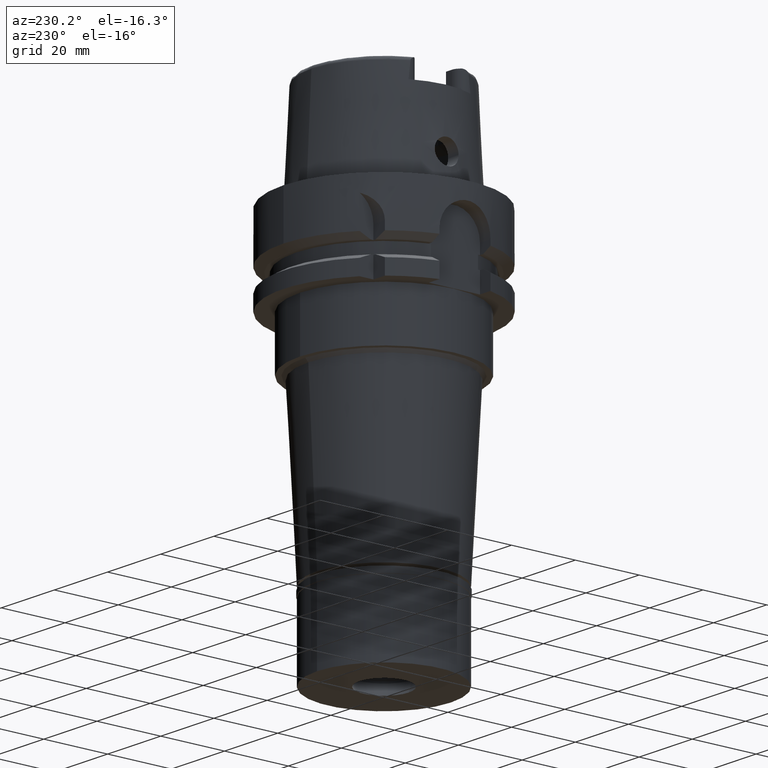
[diagram: clean part render]
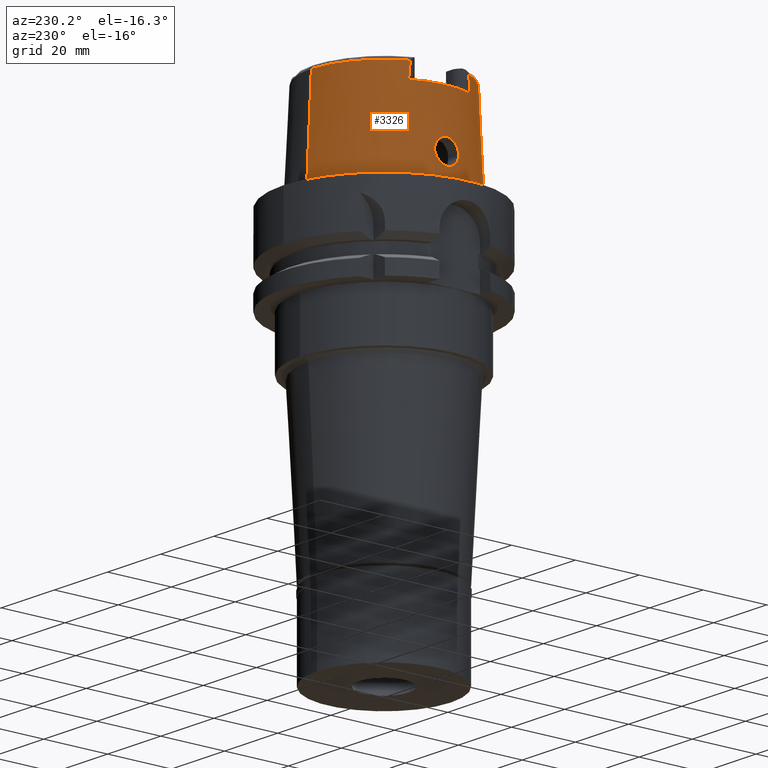
[diagram: same view with one face highlighted and labeled with its STEP entity id]
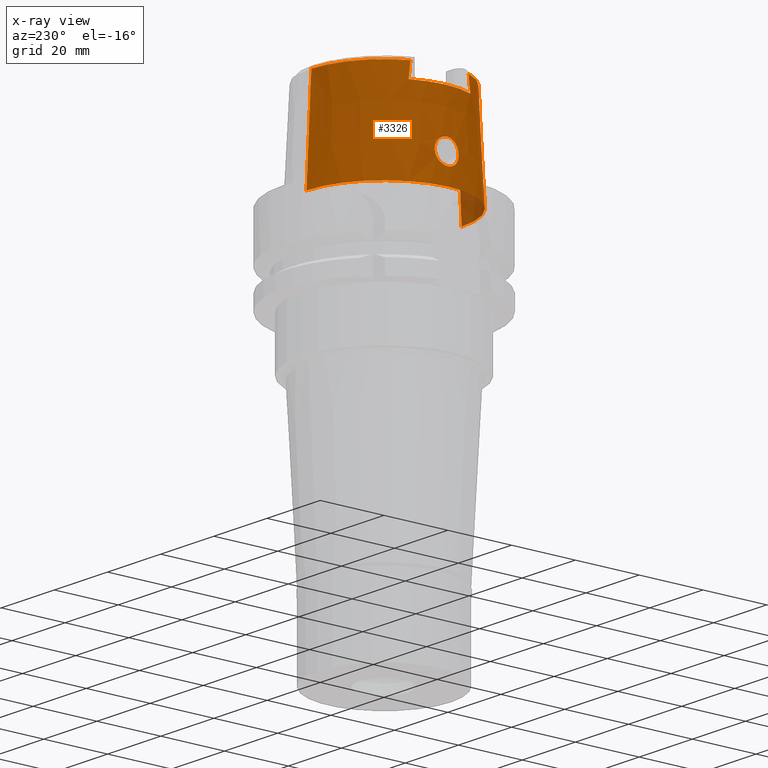
[diagram: x-ray of the same camera — body ghosted, the highlighted face saturated]
A machine part, auxiliary view. The second image highlights one B-rep face of the part: STEP entity #3326.
The next image is the same camera in x-ray: the body ghosted, the highlighted face saturated — about 3% of this face is hidden behind the body in this view.
In plain terms, the highlighted conical surface has half-angle 2.862 deg.
Its self-contained STEP definition (entity closure, byte-faithful):
#3 = CARTESIAN_POINT ( 'NONE',  ( -23.90977037416724471, -2.249098662439327434, 5.996807719199774844 ) ) ;
#35 = VECTOR ( 'NONE', #758, 1000.000000000000000 ) ;
#67 = CARTESIAN_POINT ( 'NONE',  ( -20.87000000000000099, 9.332993010319471594, 29.07609872775757864 ) ) ;
#68 = ORIENTED_EDGE ( 'NONE', *, *, #2500, .T. ) ;
#76 = CARTESIAN_POINT ( 'NONE',  ( -23.63437457385091278, 3.633527113108562023, 8.063950855209954582 ) ) ;
#101 = CARTESIAN_POINT ( 'NONE',  ( -23.54569396668904702, 3.703836825016511902, 9.599128881401501445 ) ) ;
#116 = CARTESIAN_POINT ( 'NONE',  ( -23.56144596810483449, -3.018213368116317241, 11.22950411455741104 ) ) ;
#131 = CARTESIAN_POINT ( 'NONE',  ( -23.67204778675521837, 3.510868496055372212, 7.681596404074562123 ) ) ;
#137 = CIRCLE ( 'NONE', #1560, 22.77198729362000407 ) ;
#144 = CARTESIAN_POINT ( 'NONE',  ( -23.62804747543161810, -1.887971471033302429, 12.24241216139141386 ) ) ;
#156 = CARTESIAN_POINT ( 'NONE',  ( -23.95873813391686014, 1.834456126075017401, 5.727307940465812486 ) ) ;
#168 = CARTESIAN_POINT ( 'NONE',  ( -23.54158944786044927, -3.389292595187946233, 10.61707941567341074 ) ) ;
#171 = FACE_BOUND ( 'NONE', #3247, .T. ) ;
#183 = CARTESIAN_POINT ( 'NONE',  ( -23.66082307025294185, 3.550090196351439520, 7.788899138935733824 ) ) ;
#196 = CARTESIAN_POINT ( 'NONE',  ( -23.61419268207033184, -2.139982146950603070, 12.08001965717773984 ) ) ;
#203 = EDGE_CURVE ( 'NONE', #774, #2773, #5257, .T. ) ;
#225 = DIRECTION ( 'NONE',  ( 0.0000000000000000000, -1.000000000000000000, 0.0000000000000000000 ) ) ;
#350 = CARTESIAN_POINT ( 'NONE',  ( -23.65917826466652585, 1.131066160346437588, 12.57592810551607521 ) ) ;
#358 = CARTESIAN_POINT ( 'NONE',  ( -23.85940849599262137, -2.596745478289239184, 6.294460855083120698 ) ) ;
#380 = CARTESIAN_POINT ( 'NONE',  ( -23.60596712640806061, 2.288652689664923301, 11.97316824281066339 ) ) ;
#381 = CIRCLE ( 'NONE', #833, 22.77198729362000051 ) ;
#391 = CARTESIAN_POINT ( 'NONE',  ( -23.88986219125986565, -2.392977197173405290, 6.112105039822392172 ) ) ;
#412 = VERTEX_POINT ( 'NONE', #2491 ) ;
#436 = CARTESIAN_POINT ( 'NONE',  ( -23.67506895845820480, 0.4634979685447069842, 12.72935646854004510 ) ) ;
#439 = ORIENTED_EDGE ( 'NONE', *, *, #203, .T. ) ;
#447 = CARTESIAN_POINT ( 'NONE',  ( -24.04784403100638457, -0.4712449221277967837, 5.271782624352803204 ) ) ;
#465 = CARTESIAN_POINT ( 'NONE',  ( -23.61880391537575719, 2.057588275288036783, 12.13510928703446368 ) ) ;
#478 = ORIENTED_EDGE ( 'NONE', *, *, #929, .F. ) ;
#479 = CARTESIAN_POINT ( 'NONE',  ( -23.93272843567258334, -2.063917717377175443, 5.869059823040394974 ) ) ;
#491 = CARTESIAN_POINT ( 'NONE',  ( -24.03357619164687620, 0.9592489072260214078, 5.338999859570744633 ) ) ;
#503 = CARTESIAN_POINT ( 'NONE',  ( -23.69194047245535018, -3.437410593531048164, 7.500766696733480288 ) ) ;
#528 = CARTESIAN_POINT ( 'NONE',  ( -23.61122740987530833, -2.191637265236651366, 12.04351675565335000 ) ) ;
#544 = B_SPLINE_CURVE_WITH_KNOTS ( 'NONE', 3,
 ( #1317, #67, #4729, #2986 ),
 .UNSPECIFIED., .F., .F.,
 ( 4, 4 ),
 ( 0.0000000000000000000, 1.000000000000000000 ),
 .UNSPECIFIED. ) ;
#559 = CARTESIAN_POINT ( 'NONE',  ( -23.59634444344348481, -3.723336540904699898, 8.538273357625230986 ) ) ;
#564 = CARTESIAN_POINT ( 'NONE',  ( 0.0000000000000000000, 0.0000000000000000000, 15.42996356139999925 ) ) ;
#578 = CARTESIAN_POINT ( 'NONE',  ( -23.76356790336996738, 3.127473406056431315, 6.930828792496343205 ) ) ;
#585 = CARTESIAN_POINT ( 'NONE',  ( -20.87000000000000099, -9.333063949578622953, 29.07564004622490472 ) ) ;
#590 = CARTESIAN_POINT ( 'NONE',  ( -23.64567422987614265, -1.498965751452768780, 12.43752788590499847 ) ) ;
#602 = CARTESIAN_POINT ( 'NONE',  ( -23.99367728941791711, 1.455759103901361096, 5.544090531634782160 ) ) ;
#616 = CARTESIAN_POINT ( 'NONE',  ( -23.58310336962522413, -2.663375539943642067, 11.63988439339397019 ) ) ;
#647 = CIRCLE ( 'NONE', #5409, 23.01499170873999134 ) ;
#678 = CARTESIAN_POINT ( 'NONE',  ( 0.0000000000000000000, -22.77198729362000051, 30.85992712280000205 ) ) ;
#734 = ORIENTED_EDGE ( 'NONE', *, *, #2374, .T. ) ;
#739 = CARTESIAN_POINT ( 'NONE',  ( -20.86979783672000011, -9.115619593967000611, 30.82499209982999844 ) ) ;
#746 = VERTEX_POINT ( 'NONE', #1978 ) ;
#758 = DIRECTION ( 'NONE',  ( -8.032179027593385064E-05, 0.04993928193351242217, -0.9987522523971473776 ) ) ;
#774 = VERTEX_POINT ( 'NONE', #4556 ) ;
#801 = CARTESIAN_POINT ( 'NONE',  ( -23.58491409469606737, 2.635052964712600421, 11.66818904062335172 ) ) ;
#832 = CARTESIAN_POINT ( 'NONE',  ( -23.66467888944056597, 0.9475756481600703385, 12.63054958520283932 ) ) ;
#833 = AXIS2_PLACEMENT_3D ( 'NONE', #4476, #1094, #1587 ) ;
#870 = CARTESIAN_POINT ( 'NONE',  ( -23.78134344612870166, -3.041179219897967023, 6.805112682271994728 ) ) ;
#872 = B_SPLINE_CURVE_WITH_KNOTS ( 'NONE', 3,
 ( #4359, #5168, #585, #4803 ),
 .UNSPECIFIED., .F., .F.,
 ( 4, 4 ),
 ( 0.0000000000000000000, 1.000000000000000000 ),
 .UNSPECIFIED. ) ;
#898 = CARTESIAN_POINT ( 'NONE',  ( -23.98791706815517344, -1.528498916216137538, 5.573749374551493219 ) ) ;
#929 = EDGE_CURVE ( 'NONE', #1610, #2773, #1855, .T. ) ;
#944 = CARTESIAN_POINT ( 'NONE',  ( -24.05252611746999847, 7.219293415727999012E-14, 5.250000000000000000 ) ) ;
#956 = CARTESIAN_POINT ( 'NONE',  ( -23.57934808772374780, -3.745536687796405140, 8.801868061857486936 ) ) ;
#969 = CARTESIAN_POINT ( 'NONE',  ( -23.55526259915409781, 3.738464471627190200, 9.299978913770392097 ) ) ;
#971 = CARTESIAN_POINT ( 'NONE',  ( -0.002481821280835999795, -22.77198688789000158, 30.85992712280000205 ) ) ;
#981 = CARTESIAN_POINT ( 'NONE',  ( -23.66769040187652706, -0.9503256639184251009, 12.66622697785814466 ) ) ;
#999 = CARTESIAN_POINT ( 'NONE',  ( -23.53972063624943090, 3.464158001256794961, 10.43602610361657490 ) ) ;
#1009 = CARTESIAN_POINT ( 'NONE',  ( -23.53882832073502129, -3.506283916819488589, 10.33048937356812580 ) ) ;
#1024 = CARTESIAN_POINT ( 'NONE',  ( -23.99468300645522945, 1.443410085954758060, 5.538914600029040791 ) ) ;
#1032 = DIRECTION ( 'NONE',  ( -0.9164655183265837390, 0.4001136759951928745, 0.0000000000000000000 ) ) ;
#1036 = CARTESIAN_POINT ( 'NONE',  ( -23.54087112373438018, -3.656725263444810636, 9.840145305279422772 ) ) ;
#1094 = DIRECTION ( 'NONE',  ( 0.0000000000000000000, 0.0000000000000000000, -1.000000000000000000 ) ) ;
#1198 = VERTEX_POINT ( 'NONE', #4151 ) ;
#1225 = CARTESIAN_POINT ( 'NONE',  ( -23.59755016234467817, 2.431230191671873708, 11.85576782820229091 ) ) ;
#1234 = CARTESIAN_POINT ( 'NONE',  ( -24.03379777161551800, -0.8295365991404870520, 5.340879453357177731 ) ) ;
#1259 = EDGE_CURVE ( 'NONE', #1198, #4998, #4981, .T. ) ;
#1278 = CARTESIAN_POINT ( 'NONE',  ( -23.54997999185222923, 3.214026229454481243, 10.93586780750620768 ) ) ;
#1288 = CARTESIAN_POINT ( 'NONE',  ( -23.95664189688664081, -1.852136307179821806, 5.738701566537014465 ) ) ;
#1314 = CARTESIAN_POINT ( 'NONE',  ( -24.00427867961442274, -1.320123428068236349, 5.489798429226837584 ) ) ;
#1317 = CARTESIAN_POINT ( 'NONE',  ( -20.87000040551000168, 9.149999089200999691, 30.54560915661999942 ) ) ;
#1340 = CARTESIAN_POINT ( 'NONE',  ( -23.77398056527707126, -3.077623836675240199, 6.856552763758154256 ) ) ;
#1344 = VERTEX_POINT ( 'NONE', #3079 ) ;
#1357 = CARTESIAN_POINT ( 'NONE',  ( -23.91123268141057423, 2.248799028178886328, 5.988941100288991848 ) ) ;
#1369 = CARTESIAN_POINT ( 'NONE',  ( -23.57450363916938230, -3.748430211928189149, 8.887825237944436907 ) ) ;
#1382 = CARTESIAN_POINT ( 'NONE',  ( -23.83743598511618345, 2.731006983952081857, 6.429831926619324456 ) ) ;
#1396 = CARTESIAN_POINT ( 'NONE',  ( -23.63959860660019530, -1.642256044550597371, 12.37229502711610962 ) ) ;
#1439 = CARTESIAN_POINT ( 'NONE',  ( -23.84640056449046241, 2.677479688281084069, 6.374387674265216575 ) ) ;
#1451 = CARTESIAN_POINT ( 'NONE',  ( -23.56998770108803143, -3.750010121852111133, 8.971643345807194692 ) ) ;
#1466 = CARTESIAN_POINT ( 'NONE',  ( -23.76041262107198548, 3.142590146860217537, 6.953856223795551017 ) ) ;
#1478 = CARTESIAN_POINT ( 'NONE',  ( -23.63580597689347229, -1.725333418006325115, 12.33009276472206928 ) ) ;
#1537 = VERTEX_POINT ( 'NONE', #3623 ) ;
#1560 = AXIS2_PLACEMENT_3D ( 'NONE', #4805, #4856, #1032 ) ;
#1587 = DIRECTION ( 'NONE',  ( 0.0000000000000000000, -1.000000000000000000, 0.0000000000000000000 ) ) ;
#1596 = CARTESIAN_POINT ( 'NONE',  ( -20.86974104062000279, -9.111384045007000054, 30.85992599777999956 ) ) ;
#1610 = VERTEX_POINT ( 'NONE', #678 ) ;
#1636 = CARTESIAN_POINT ( 'NONE',  ( -23.67751368057999883, 0.0000000000000000000, 12.75000000000000000 ) ) ;
#1658 = CARTESIAN_POINT ( 'NONE',  ( -23.54067330450968853, 3.430129260199126229, 10.51592010266325872 ) ) ;
#1684 = CARTESIAN_POINT ( 'NONE',  ( -23.58429707437746714, 2.644661622755614783, 11.65867690194888517 ) ) ;
#1695 = EDGE_CURVE ( 'NONE', #1344, #3750, #4764, .T. ) ;
#1711 = CONICAL_SURFACE ( 'NONE', #4964, 23.54351105844999736, 0.04996004983832824653 ) ;
#1719 = CARTESIAN_POINT ( 'NONE',  ( -23.64841273167512270, 1.431321641841721171, 12.46610142221273776 ) ) ;
#1757 = CARTESIAN_POINT ( 'NONE',  ( -23.99739408137548580, -1.409812632735452986, 5.525071007734585926 ) ) ;
#1775 = CARTESIAN_POINT ( 'NONE',  ( -23.82490491044294245, 2.804306900989513629, 6.509012968158042867 ) ) ;
#1802 = CARTESIAN_POINT ( 'NONE',  ( -23.55873676375497183, 3.744916830425509158, 9.210482356265831783 ) ) ;
#1814 = CARTESIAN_POINT ( 'NONE',  ( -23.53920756976014772, -3.486218784508323232, 10.38174248041745251 ) ) ;
#1818 = CARTESIAN_POINT ( 'NONE',  ( -20.86989332435999600, 9.124125753627000179, 30.75512689823000301 ) ) ;
#1826 = CARTESIAN_POINT ( 'NONE',  ( -23.81419323770733598, 2.864596055949950593, 6.579175657843782332 ) ) ;
#1843 = CARTESIAN_POINT ( 'NONE',  ( -20.86974104062000279, -9.111384045007000054, 30.85992599777999956 ) ) ;
#1854 = CARTESIAN_POINT ( 'NONE',  ( -23.98852074148177138, 1.517759262559271738, 5.570685814059329388 ) ) ;
#1855 = LINE ( 'NONE', #971, #5459 ) ;
#1867 = CARTESIAN_POINT ( 'NONE',  ( -23.58186774021432797, -2.683281682217989239, 11.61965271907572905 ) ) ;
#1885 = CARTESIAN_POINT ( 'NONE',  ( -23.68033249133873497, 3.480867105897472058, 7.604961491939133289 ) ) ;
#1896 = CARTESIAN_POINT ( 'NONE',  ( -23.57803920227373951, -2.745100258821645323, 11.55521655727574348 ) ) ;
#1932 = DIRECTION ( 'NONE',  ( 0.0000000000000000000, 1.000000000000000000, 0.0000000000000000000 ) ) ;
#1978 = CARTESIAN_POINT ( 'NONE',  ( -20.86999859286000003, -9.150003160549998071, 30.54568941691999839 ) ) ;
#2051 = CARTESIAN_POINT ( 'NONE',  ( -23.61157421355118302, 2.189743312326676961, 12.04674986831709660 ) ) ;
#2057 = ORIENTED_EDGE ( 'NONE', *, *, #3272, .F. ) ;
#2069 = CARTESIAN_POINT ( 'NONE',  ( -20.86999859286000003, -9.145656142293999480, 30.58059766507999910 ) ) ;
#2082 = CARTESIAN_POINT ( 'NONE',  ( -23.54698670297277729, 3.273566429523531163, 10.83288825706248737 ) ) ;
#2091 = CARTESIAN_POINT ( 'NONE',  ( -23.88287287509136902, -2.441782404214077218, 6.153149137644419397 ) ) ;
#2119 = CARTESIAN_POINT ( 'NONE',  ( -23.86621961881384379, -2.553053626325101799, 6.252916213073491214 ) ) ;
#2135 = CARTESIAN_POINT ( 'NONE',  ( -23.63993648970340899, 1.633983311195908561, 12.37753807014659380 ) ) ;
#2146 = CARTESIAN_POINT ( 'NONE',  ( -23.96228322086099283, -1.797894771192227514, 5.708526058005679360 ) ) ;
#2161 = CARTESIAN_POINT ( 'NONE',  ( -23.61799458439303834, 2.072497021282910801, 12.12527372385619806 ) ) ;
#2172 = CARTESIAN_POINT ( 'NONE',  ( -23.87185901803953669, -2.515824761732209147, 6.218954143894581676 ) ) ;
#2185 = CARTESIAN_POINT ( 'NONE',  ( -23.53850369563399880, 3.633734160848487882, 9.958084870872077943 ) ) ;
#2195 = VERTEX_POINT ( 'NONE', #1843 ) ;
#2224 = CARTESIAN_POINT ( 'NONE',  ( -23.64681593463163978, -1.471115943450023389, 12.44955342254505481 ) ) ;
#2226 = FACE_OUTER_BOUND ( 'NONE', #3346, .T. ) ;
#2240 = CARTESIAN_POINT ( 'NONE',  ( -23.94765431427196845, 1.937851768460953750, 5.787135434672112666 ) ) ;
#2251 = CARTESIAN_POINT ( 'NONE',  ( -23.53836553739646931, -3.544368480732007054, 10.22752641938382112 ) ) ;
#2267 = CARTESIAN_POINT ( 'NONE',  ( -23.84794387819798800, 2.668186244842986277, 6.364930592446333080 ) ) ;
#2281 = CARTESIAN_POINT ( 'NONE',  ( -23.55712623751192325, -3.092166483046957293, 11.12507249916881591 ) ) ;
#2293 = CARTESIAN_POINT ( 'NONE',  ( -23.79280889011993949, 2.981641885983248308, 6.722388114469310949 ) ) ;
#2299 = CARTESIAN_POINT ( 'NONE',  ( -20.87000000000000099, 9.702213322398998585, 26.00000000000000000 ) ) ;
#2306 = CARTESIAN_POINT ( 'NONE',  ( -23.53940178877574496, -3.477400120869876154, 10.40365610236502825 ) ) ;
#2342 = CARTESIAN_POINT ( 'NONE',  ( -20.87000040551000168, 9.149999089200999691, 30.54560915661999942 ) ) ;
#2374 = EDGE_CURVE ( 'NONE', #1610, #2195, #381, .T. ) ;
#2444 = CARTESIAN_POINT ( 'NONE',  ( 0.0000000000000000000, 0.0000000000000000000, -6.821210263297000155E-13 ) ) ;
#2449 = ORIENTED_EDGE ( 'NONE', *, *, #1695, .F. ) ;
#2478 = CARTESIAN_POINT ( 'NONE',  ( -23.57090358750208736, 2.851754690814571447, 11.45077027659394453 ) ) ;
#2490 = CARTESIAN_POINT ( 'NONE',  ( -23.93530267997261518, -2.042228591510286240, 5.854865975254936572 ) ) ;
#2491 = CARTESIAN_POINT ( 'NONE',  ( -20.86999931535000385, -9.702216590572000143, 26.00000000000000000 ) ) ;
#2500 = EDGE_CURVE ( 'NONE', #1537, #774, #3671, .T. ) ;
#2534 = CARTESIAN_POINT ( 'NONE',  ( -23.54198930544270496, 3.390534170926272850, 10.60379308699783785 ) ) ;
#2544 = CARTESIAN_POINT ( 'NONE',  ( -23.94775111549552093, -1.933588713242142543, 5.786788400814061539 ) ) ;
#2562 = CARTESIAN_POINT ( 'NONE',  ( -23.65232158309055066, 1.330154988880421607, 12.50643296395633364 ) ) ;
#2569 = CARTESIAN_POINT ( 'NONE',  ( -23.67751368057999883, 0.0000000000000000000, 12.75000000000000000 ) ) ;
#2572 = CARTESIAN_POINT ( 'NONE',  ( -23.94319852594255948, -1.974337125060551923, 5.811537566790364373 ) ) ;
#2591 = CARTESIAN_POINT ( 'NONE',  ( -23.67782269714316001, 3.490050184527053290, 7.627948455366456493 ) ) ;
#2630 = CARTESIAN_POINT ( 'NONE',  ( -23.54807138943503020, -3.727233854518922307, 9.479752997825329430 ) ) ;
#2647 = CARTESIAN_POINT ( 'NONE',  ( -23.69435245298586068, 3.428900178011371036, 7.478175888373312930 ) ) ;
#2658 = CARTESIAN_POINT ( 'NONE',  ( -23.67751368057999173, -0.4547736024480378836, 12.74999999999999822 ) ) ;
#2665 = CARTESIAN_POINT ( 'NONE',  ( -20.86974110888999689, 9.111383544920999000, 30.85992740208000029 ) ) ;
#2674 = CARTESIAN_POINT ( 'NONE',  ( -23.56699672376325339, 3.749977598658581712, 9.030790687660465110 ) ) ;
#2686 = CARTESIAN_POINT ( 'NONE',  ( -23.56893587454638705, -2.893657321878321476, 11.38614698554303395 ) ) ;
#2705 = CARTESIAN_POINT ( 'NONE',  ( -23.57969795373894684, 3.750169386990163556, 8.779425274113371813 ) ) ;
#2719 = CARTESIAN_POINT ( 'NONE',  ( -23.53847580546914031, -3.573511052602396099, 10.13858696781327140 ) ) ;
#2744 = EDGE_CURVE ( 'NONE', #412, #746, #872, .T. ) ;
#2749 = ORIENTED_EDGE ( 'NONE', *, *, #5097, .T. ) ;
#2764 = VERTEX_POINT ( 'NONE', #2299 ) ;
#2773 = VERTEX_POINT ( 'NONE', #3037 ) ;
#2803 = DIRECTION ( 'NONE',  ( 0.0000000000000000000, 0.0000000000000000000, -1.000000000000000000 ) ) ;
#2851 = ORIENTED_EDGE ( 'NONE', *, *, #4388, .F. ) ;
#2895 = CARTESIAN_POINT ( 'NONE',  ( -23.59334009697581536, 2.501073114319922741, 11.79531174189743226 ) ) ;
#2907 = CARTESIAN_POINT ( 'NONE',  ( -24.01170417611531605, -1.216768086550585437, 5.451919543056890305 ) ) ;
#2931 = CARTESIAN_POINT ( 'NONE',  ( -24.05252611747000202, -0.2330175218488809985, 5.249999999999995559 ) ) ;
#2948 = CARTESIAN_POINT ( 'NONE',  ( -23.63218650553924860, 1.797535615919029883, 12.29167995537865821 ) ) ;
#2957 = CARTESIAN_POINT ( 'NONE',  ( -23.82423319362705527, -2.811394049109354309, 6.515292966782118000 ) ) ;
#2986 = CARTESIAN_POINT ( 'NONE',  ( -20.87000000000000099, 9.702213322398998585, 26.00000000000000000 ) ) ;
#3011 = CARTESIAN_POINT ( 'NONE',  ( -23.75277925031170767, -3.178589229550249584, 7.006608756845543517 ) ) ;
#3029 = CARTESIAN_POINT ( 'NONE',  ( -23.88272469426728506, 2.457339304538247227, 6.153424828012440173 ) ) ;
#3032 = DIRECTION ( 'NONE',  ( 8.032179027582384478E-05, -0.04993928193351242217, -0.9987522523971473776 ) ) ;
#3037 = CARTESIAN_POINT ( 'NONE',  ( 0.0000000000000000000, -24.31503482328999866, -3.801403636316999971E-13 ) ) ;
#3042 = CARTESIAN_POINT ( 'NONE',  ( -23.65783550932416901, -3.565124454536641618, 7.806570528675774057 ) ) ;
#3058 = CARTESIAN_POINT ( 'NONE',  ( -23.97377877642080080, 1.681365096196810516, 5.647564756471924241 ) ) ;
#3072 = CARTESIAN_POINT ( 'NONE',  ( -23.63430709037118049, -3.637372640996526130, 8.055071030064830495 ) ) ;
#3079 = CARTESIAN_POINT ( 'NONE',  ( -24.05252611746999847, 7.219293415727999012E-14, 5.250000000000000000 ) ) ;
#3087 = CARTESIAN_POINT ( 'NONE',  ( -23.53977541936164997, 3.462018681141858512, 10.44117035441349728 ) ) ;
#3097 = CARTESIAN_POINT ( 'NONE',  ( -23.71854292220509208, -3.329989597668852497, 7.274458703164628837 ) ) ;
#3104 = CARTESIAN_POINT ( 'NONE',  ( -20.86979790990000083, 9.115619349813000483, 30.82499136814000096 ) ) ;
#3116 = CARTESIAN_POINT ( 'NONE',  ( -23.68201342804706044, 3.474686825855617833, 7.589638447022487355 ) ) ;
#3126 = CARTESIAN_POINT ( 'NONE',  ( -23.57160089511893020, -2.849869561269248397, 11.43835529652016980 ) ) ;
#3136 = EDGE_CURVE ( 'NONE', #746, #2195, #3310, .T. ) ;
#3142 = CARTESIAN_POINT ( 'NONE',  ( -23.76242428351645941, 3.132968351347059865, 6.939153937456557841 ) ) ;
#3153 = CARTESIAN_POINT ( 'NONE',  ( -23.64326130477060417, -1.556617199444246147, 12.41180878491119444 ) ) ;
#3156 = CARTESIAN_POINT ( 'NONE',  ( -20.86998013695999887, 9.136999222885000549, 30.65036981261000193 ) ) ;
#3247 = EDGE_LOOP ( 'NONE', ( #2851, #2449 ) ) ;
#3264 = CARTESIAN_POINT ( 'NONE',  ( -20.86999859286000003, -9.150003160549998071, 30.54568941691999839 ) ) ;
#3272 = EDGE_CURVE ( 'NONE', #4998, #2764, #544, .T. ) ;
#3286 = CARTESIAN_POINT ( 'NONE',  ( 0.0000000000000000000, 0.0000000000000000000, 26.00000000000000000 ) ) ;
#3305 = CARTESIAN_POINT ( 'NONE',  ( -23.62276609582206177, 1.983578182761324360, 12.18277237706659832 ) ) ;
#3310 = B_SPLINE_CURVE_WITH_KNOTS ( 'NONE', 3,
 ( #3264, #2069, #4591, #3320, #739, #1596 ),
 .UNSPECIFIED., .F., .F.,
 ( 4, 1, 1, 4 ),
 ( 0.0000000000000000000, 0.3333333333333000081, 0.6666666666667000474, 1.000000000000000000 ),
 .UNSPECIFIED. ) ;
#3316 = CARTESIAN_POINT ( 'NONE',  ( -24.05252611746999847, 7.219293415727999012E-14, 5.250000000000000000 ) ) ;
#3320 = CARTESIAN_POINT ( 'NONE',  ( -20.86989310975999601, -9.124125559549000286, 30.75513691719999798 ) ) ;
#3326 = ADVANCED_FACE ( 'NONE', ( #2226, #171 ), #1711, .T. ) ;
#3346 = EDGE_LOOP ( 'NONE', ( #2057, #5362, #2749, #68, #439, #478, #734, #3391, #5274, #4704 ) ) ;
#3388 = CARTESIAN_POINT ( 'NONE',  ( -23.62503058980119164, 1.939940969957651973, 12.20939960623892517 ) ) ;
#3391 = ORIENTED_EDGE ( 'NONE', *, *, #3136, .F. ) ;
#3424 = CARTESIAN_POINT ( 'NONE',  ( -23.85332124833071177, -2.635094538853390844, 6.331885278338446277 ) ) ;
#3442 = CARTESIAN_POINT ( 'NONE',  ( -23.65175920629142681, 3.579641106528462124, 7.880749639606493773 ) ) ;
#3454 = CARTESIAN_POINT ( 'NONE',  ( -23.69852667882819119, -3.411742357358022115, 7.443238562543371017 ) ) ;
#3471 = CARTESIAN_POINT ( 'NONE',  ( -23.59495111184624605, 3.730346815741832245, 8.545404320872123094 ) ) ;
#3483 = CARTESIAN_POINT ( 'NONE',  ( -23.54618766683753250, -3.289814391857896148, 10.81640524375341172 ) ) ;
#3497 = CARTESIAN_POINT ( 'NONE',  ( -23.73367145062732675, 3.265762422221483607, 7.155637914768819385 ) ) ;
#3509 = CARTESIAN_POINT ( 'NONE',  ( -23.70845751323913575, -3.372271017066991838, 7.357696286398312857 ) ) ;
#3523 = CARTESIAN_POINT ( 'NONE',  ( -23.56547710963080178, 3.749604354209215007, 9.062028301881353443 ) ) ;
#3534 = CARTESIAN_POINT ( 'NONE',  ( -23.73891983954371199, -3.241939151944000397, 7.111184369568899655 ) ) ;
#3556 = CARTESIAN_POINT ( 'NONE',  ( -23.75052452204310782, 3.189282837131496517, 7.026921599025305554 ) ) ;
#3567 = CARTESIAN_POINT ( 'NONE',  ( -23.59430846912513857, -2.480476835651556744, 11.81510341640936446 ) ) ;
#3623 = CARTESIAN_POINT ( 'NONE',  ( 0.0000000000000000000, 22.77198729362000051, 30.85992712280000205 ) ) ;
#3639 = EDGE_CURVE ( 'NONE', #412, #2764, #647, .T. ) ;
#3671 = LINE ( 'NONE', #4534, #35 ) ;
#3717 = CARTESIAN_POINT ( 'NONE',  ( -23.66773479209282272, 0.8256619546782619778, 12.66003959618861607 ) ) ;
#3750 = VERTEX_POINT ( 'NONE', #2569 ) ;
#3757 = CARTESIAN_POINT ( 'NONE',  ( -23.97834960192485809, -1.635769806515963154, 5.623365223107082755 ) ) ;
#3773 = CARTESIAN_POINT ( 'NONE',  ( -23.64938743905960195, 1.406644316607779555, 12.47619330403871096 ) ) ;
#3782 = CARTESIAN_POINT ( 'NONE',  ( -23.85444957485084672, -2.628034503709688163, 6.324927793128354736 ) ) ;
#3798 = CARTESIAN_POINT ( 'NONE',  ( -23.62942877858422008, 1.853682844770465632, 12.26049491776797673 ) ) ;
#3837 = CARTESIAN_POINT ( 'NONE',  ( -23.85643976684254852, -2.615513920717143836, 6.312684686308545068 ) ) ;
#3853 = CARTESIAN_POINT ( 'NONE',  ( -24.05252611747000557, 0.4684080826457641122, 5.250000000000007105 ) ) ;
#3863 = CARTESIAN_POINT ( 'NONE',  ( -23.57585100361579933, -2.780618126349109431, 11.51632094584495114 ) ) ;
#3891 = CARTESIAN_POINT ( 'NONE',  ( -23.68885207613542221, -3.449220939777066341, 7.528097105200748373 ) ) ;
#3911 = CARTESIAN_POINT ( 'NONE',  ( -23.99215633037006867, 1.474307707146639057, 5.551923259653391618 ) ) ;
#3924 = CARTESIAN_POINT ( 'NONE',  ( -23.60552529590790272, -2.290077384271370864, 11.97015382065735700 ) ) ;
#3939 = CARTESIAN_POINT ( 'NONE',  ( -23.74481897960033905, 3.215452673660231131, 7.070114503808754058 ) ) ;
#3951 = CARTESIAN_POINT ( 'NONE',  ( -23.67751368057999883, 0.0000000000000000000, 12.75000000000000000 ) ) ;
#3964 = CARTESIAN_POINT ( 'NONE',  ( -23.68304057078708169, 3.470889016974626706, 7.580326925274432526 ) ) ;
#3979 = CARTESIAN_POINT ( 'NONE',  ( -23.58070260342466185, -2.702068654035014728, 11.60036284807221563 ) ) ;
#4012 = DIRECTION ( 'NONE',  ( 0.0000000000000000000, 0.0000000000000000000, 1.000000000000000000 ) ) ;
#4144 = CARTESIAN_POINT ( 'NONE',  ( -24.01741046899284981, -1.127680563584130935, 5.423033060817162188 ) ) ;
#4151 = CARTESIAN_POINT ( 'NONE',  ( -20.86974110888999689, 9.111383544920999000, 30.85992740208000029 ) ) ;
#4160 = CARTESIAN_POINT ( 'NONE',  ( -23.62000973690140526, 2.035275439197532510, 12.14971480439411522 ) ) ;
#4169 = CARTESIAN_POINT ( 'NONE',  ( -23.92162947530795591, -2.156598069728492995, 5.930386810805588382 ) ) ;
#4198 = CARTESIAN_POINT ( 'NONE',  ( -23.99866383373813150, -1.393662127828920738, 5.518555523119866635 ) ) ;
#4241 = CARTESIAN_POINT ( 'NONE',  ( -23.65028272303975143, 1.383707002447021495, 12.48544544609979390 ) ) ;
#4255 = CARTESIAN_POINT ( 'NONE',  ( -23.93369581774046395, -2.055800950861796483, 5.863720659120602363 ) ) ;
#4269 = CARTESIAN_POINT ( 'NONE',  ( -23.98090282593193479, 1.605315044219565612, 5.610190535984783899 ) ) ;
#4303 = CARTESIAN_POINT ( 'NONE',  ( -23.58264976010823233, -2.670680045219184340, 11.63249863262177186 ) ) ;
#4320 = CARTESIAN_POINT ( 'NONE',  ( -23.56271390740698735, 3.748153444893322472, 9.121351048093163882 ) ) ;
#4354 = CARTESIAN_POINT ( 'NONE',  ( -23.72659117252868910, 3.296595844622797866, 7.211500981764691787 ) ) ;
#4359 = CARTESIAN_POINT ( 'NONE',  ( -20.86999931535000385, -9.702216590572000143, 26.00000000000000000 ) ) ;
#4364 = CARTESIAN_POINT ( 'NONE',  ( -23.53937226095550628, -3.627155002127216754, 9.960048277914383519 ) ) ;
#4384 = CARTESIAN_POINT ( 'NONE',  ( -23.54012389794621996, 3.448956601825551083, 10.47224935710890037 ) ) ;
#4388 = EDGE_CURVE ( 'NONE', #3750, #1344, #5072, .T. ) ;
#4394 = CARTESIAN_POINT ( 'NONE',  ( -23.58882052790292860, -2.571358099908242156, 11.73234150489165728 ) ) ;
#4398 = CARTESIAN_POINT ( 'NONE',  ( -20.87000040551000168, 9.145651821177999352, 30.58051936379000324 ) ) ;
#4476 = CARTESIAN_POINT ( 'NONE',  ( 0.0000000000000000000, 0.0000000000000000000, 30.85992712280000205 ) ) ;
#4534 = CARTESIAN_POINT ( 'NONE',  ( 0.002481821280839999633, 22.77198688789000158, 30.85992712280000205 ) ) ;
#4556 = CARTESIAN_POINT ( 'NONE',  ( 0.0000000000000000000, 24.31503482328999866, -6.821210263297000155E-13 ) ) ;
#4573 = CARTESIAN_POINT ( 'NONE',  ( -23.58631876926667559, 2.613062619958971933, 11.68972872749584013 ) ) ;
#4587 = CARTESIAN_POINT ( 'NONE',  ( -23.93769957346366439, -2.021866554917122638, 5.841675736071286984 ) ) ;
#4591 = CARTESIAN_POINT ( 'NONE',  ( -20.86998097132000041, -9.136996582995999816, 30.65033328964000248 ) ) ;
#4605 = CARTESIAN_POINT ( 'NONE',  ( -23.67751368058000949, 0.2269480807008605328, 12.75000000000000533 ) ) ;
#4613 = CARTESIAN_POINT ( 'NONE',  ( -24.02794516353599974, -0.9491090672480194668, 5.369970285460808235 ) ) ;
#4631 = CARTESIAN_POINT ( 'NONE',  ( -23.54348962819571156, 3.353162528444165069, 10.67991225684056467 ) ) ;
#4642 = CARTESIAN_POINT ( 'NONE',  ( -23.79569839258967434, -2.967380796573764190, 6.706323345981892281 ) ) ;
#4671 = CARTESIAN_POINT ( 'NONE',  ( -24.00093171936894620, -1.364268406961320457, 5.506932367400962036 ) ) ;
#4689 = CARTESIAN_POINT ( 'NONE',  ( -23.64878580822494314, 1.421932379480062014, 12.46996778496209046 ) ) ;
#4704 = ORIENTED_EDGE ( 'NONE', *, *, #3639, .T. ) ;
#4711 = CARTESIAN_POINT ( 'NONE',  ( -23.54898490868719207, 3.721187711106637153, 9.479247155454752161 ) ) ;
#4725 = CARTESIAN_POINT ( 'NONE',  ( -23.53962588855880966, -3.467851857127753679, 10.42707474068608064 ) ) ;
#4729 = CARTESIAN_POINT ( 'NONE',  ( -20.87000000000000099, 9.517059732219138368, 27.56089567555091335 ) ) ;
#4740 = CARTESIAN_POINT ( 'NONE',  ( -23.53991170811254463, 3.456820900537677321, 10.45359368484506390 ) ) ;
#4750 = CARTESIAN_POINT ( 'NONE',  ( -23.53953830894593224, -3.471472262063464598, 10.41825328769453485 ) ) ;
#4763 = CARTESIAN_POINT ( 'NONE',  ( -23.70640456188290202, 3.381804933265460278, 7.374888620003773099 ) ) ;
#4764 = B_SPLINE_CURVE_WITH_KNOTS ( 'NONE', 3,
 ( #3316, #2931, #447, #1234, #4613, #4144, #2907, #1314, #4671, #4198, #1757, #898, #3757, #2146, #1288, #2544, #2572, #4587, #2490, #4255, #479, #4169, #3, #391, #2091, #2172, #2119, #358, #3837, #3782, #3424, #5061, #2957, #5447, #4642, #870, #1340, #3011, #3534, #3097, #3509, #3454, #503, #3891, #3042, #3072, #5227, #559, #5146, #956, #1369, #4808, #1451, #4778, #2630, #1036, #4364, #2719, #2251, #1009, #1814, #2306, #4750, #4725, #168, #3483, #2281, #116, #2686, #3126, #3863, #1896, #3979, #1867, #4303, #616, #4394, #3567, #5176, #3924, #528, #196, #5256, #144, #1478, #1396, #3153, #590, #2224, #981, #2658, #3951 ),
 .UNSPECIFIED., .F., .F.,
 ( 4, 2, 2, 1, 1, 2, 2, 2, 2, 1, 1, 2, 2, 2, 2, 1, 1, 2, 2, 2, 2, 2, 2, 1, 2, 2, 2, 2, 1, 2, 2, 2, 2, 1, 1, 1, 2, 2, 2, 2, 2, 1, 1, 2, 2, 2, 2, 2, 2, 1, 2, 2, 4 ),
 ( 0.0000000000000000000, 0.06250000000000770217, 0.09375000000001151856, 0.1093750000000134476, 0.1171875000000143913, 0.1210937500000148492, 0.1250000000000153211, 0.1562500000000195954, 0.1718750000000217604, 0.1796875000000228151, 0.1835937500000233702, 0.1855468750000236755, 0.1875000000000239808, 0.2187500000000261180, 0.2343750000000272560, 0.2421875000000279221, 0.2460937500000282274, 0.2480468750000281997, 0.2500000000000281997, 0.2812500000000288658, 0.2968750000000293654, 0.3125000000000298650, 0.3437500000000309752, 0.3593750000000315303, 0.3671875000000317524, 0.3750000000000319744, 0.4375000000000349720, 0.4687500000000363043, 0.4843750000000369149, 0.4921875000000372480, 0.5000000000000375255, 0.5625000000000410783, 0.5937500000000428546, 0.6093750000000437428, 0.6171875000000439648, 0.6210937500000440759, 0.6230468750000439648, 0.6250000000000437428, 0.6875000000000391909, 0.7187500000000371925, 0.7343750000000361933, 0.7421875000000358602, 0.7460937500000355271, 0.7480468750000355271, 0.7500000000000355271, 0.7812500000000309752, 0.7968750000000286438, 0.8125000000000262013, 0.8437500000000213163, 0.8593750000000189848, 0.8671875000000179856, 0.8750000000000168754, 1.000000000000000000 ),
 .UNSPECIFIED. ) ;
#4773 = CARTESIAN_POINT ( 'NONE',  ( -20.87000040551000168, 9.149999089200999691, 30.54560915661999942 ) ) ;
#4778 = CARTESIAN_POINT ( 'NONE',  ( -23.55647646972071030, -3.749916970981255648, 9.238628573070425176 ) ) ;
#4803 = CARTESIAN_POINT ( 'NONE',  ( -20.86999859286000003, -9.150003160549998071, 30.54568941691999839 ) ) ;
#4805 = CARTESIAN_POINT ( 'NONE',  ( 0.0000000000000000000, 0.0000000000000000000, 30.85992712280000205 ) ) ;
#4808 = CARTESIAN_POINT ( 'NONE',  ( -23.57140031500782840, -3.749702166341882137, 8.944810375348058784 ) ) ;
#4822 = CARTESIAN_POINT ( 'NONE',  ( -23.84281375779365320, 2.698972350316408697, 6.396485871281717195 ) ) ;
#4837 = DIRECTION ( 'NONE',  ( 0.0000000000000000000, 0.0000000000000000000, -1.000000000000000000 ) ) ;
#4856 = DIRECTION ( 'NONE',  ( 0.0000000000000000000, 0.0000000000000000000, -1.000000000000000000 ) ) ;
#4964 = AXIS2_PLACEMENT_3D ( 'NONE', #564, #4837, #225 ) ;
#4981 = B_SPLINE_CURVE_WITH_KNOTS ( 'NONE', 3,
 ( #2665, #3104, #1818, #3156, #4398, #2342 ),
 .UNSPECIFIED., .F., .F.,
 ( 4, 1, 1, 4 ),
 ( 0.0000000000000000000, 0.3333333333333000081, 0.6666666666667000474, 1.000000000000000000 ),
 .UNSPECIFIED. ) ;
#4995 = CARTESIAN_POINT ( 'NONE',  ( -23.61752725751876625, 2.081062378251180345, 12.11957346421964665 ) ) ;
#4998 = VERTEX_POINT ( 'NONE', #4773 ) ;
#5051 = CARTESIAN_POINT ( 'NONE',  ( -23.56094557557477742, 3.013938382123309001, 11.24474286184521787 ) ) ;
#5061 = CARTESIAN_POINT ( 'NONE',  ( -23.83838803507710224, -2.728123648051067995, 6.424141521489455720 ) ) ;
#5072 = B_SPLINE_CURVE_WITH_KNOTS ( 'NONE', 3,
 ( #1636, #4605, #436, #3717, #832, #350, #5413, #2562, #4241, #3773, #4689, #1719, #5438, #2135, #2948, #3798, #3388, #3305, #4160, #465, #2161, #4995, #2051, #380, #1225, #2895, #5463, #4573, #801, #1684, #2478, #5051, #1278, #2082, #4631, #2534, #1658, #4384, #4740, #3087, #999, #5134, #2185, #101, #4711, #969, #1802, #4320, #3523, #2674, #2705, #3471, #5246, #76, #3442, #183, #131, #2591, #1885, #3116, #3964, #2647, #4763, #4354, #3497, #3939, #3556, #5189, #1466, #3142, #578, #5160, #2293, #1826, #1775, #1382, #4822, #1439, #2267, #3029, #1357, #2240, #156, #3058, #4269, #1854, #3911, #602, #1024, #5214, #491, #3853, #944 ),
 .UNSPECIFIED., .F., .F.,
 ( 4, 2, 2, 1, 1, 1, 2, 2, 2, 2, 1, 1, 2, 2, 2, 1, 1, 2, 2, 2, 2, 1, 1, 1, 2, 2, 2, 2, 1, 2, 2, 2, 2, 1, 1, 1, 2, 2, 2, 2, 1, 1, 2, 2, 2, 1, 1, 2, 2, 2, 2, 1, 1, 1, 2, 2, 4 ),
 ( 0.0000000000000000000, 0.06249999999998287481, 0.09374999999997429834, 0.1093749999999699407, 0.1171874999999677480, 0.1210937499999666656, 0.1230468749999662353, 0.1249999999999657774, 0.1562499999999601985, 0.1718749999999575062, 0.1796874999999559797, 0.1835937499999552858, 0.1855468749999550637, 0.1874999999999548694, 0.2187499999999511502, 0.2343749999999493183, 0.2421874999999482081, 0.2460937499999477085, 0.2499999999999472089, 0.3124999999999390488, 0.3437499999999348299, 0.3593749999999328870, 0.3671874999999321099, 0.3710937499999318878, 0.3730468749999321099, 0.3749999999999322764, 0.4374999999999381051, 0.4687499999999410472, 0.4843749999999424904, 0.4921874999999429900, 0.4999999999999434896, 0.5624999999999491518, 0.5937499999999517053, 0.6093749999999531486, 0.6171874999999539257, 0.6210937499999543698, 0.6230468749999545919, 0.6249999999999548139, 0.6562499999999593658, 0.6718749999999615863, 0.6796874999999626965, 0.6835937499999631406, 0.6855468749999633626, 0.6874999999999635847, 0.7187499999999680256, 0.7343749999999702460, 0.7421874999999712452, 0.7460937499999718003, 0.7499999999999722444, 0.8124999999999820144, 0.8437499999999868994, 0.8593749999999892308, 0.8671874999999904521, 0.8710937499999908962, 0.8730468749999910072, 0.8749999999999911182, 1.000000000000000000 ),
 .UNSPECIFIED. ) ;
#5097 = EDGE_CURVE ( 'NONE', #1198, #1537, #137, .T. ) ;
#5134 = CARTESIAN_POINT ( 'NONE',  ( -23.53728692151646840, 3.562861642927035888, 10.19650487820989326 ) ) ;
#5146 = CARTESIAN_POINT ( 'NONE',  ( -23.58476092321427231, -3.739584907787268708, 8.714541877452401053 ) ) ;
#5160 = CARTESIAN_POINT ( 'NONE',  ( -23.77860465557347780, 3.054959467272179374, 6.821714690237711487 ) ) ;
#5168 = CARTESIAN_POINT ( 'NONE',  ( -20.87000000000000099, -9.517135092919289718, 27.56041024058491118 ) ) ;
#5176 = CARTESIAN_POINT ( 'NONE',  ( -23.60270101051734670, -2.338396578196946685, 11.93226356035703262 ) ) ;
#5189 = CARTESIAN_POINT ( 'NONE',  ( -23.75741159964980298, 3.156884696766722787, 6.975867710166220981 ) ) ;
#5214 = CARTESIAN_POINT ( 'NONE',  ( -23.99508415481864532, 1.438458795708043247, 5.536851156630008930 ) ) ;
#5227 = CARTESIAN_POINT ( 'NONE',  ( -23.60507725592722394, -3.706708536380825869, 8.418597000141287978 ) ) ;
#5246 = CARTESIAN_POINT ( 'NONE',  ( -23.62377561286724514, 3.662492822418640603, 8.185409627462252757 ) ) ;
#5256 = CARTESIAN_POINT ( 'NONE',  ( -23.62264415172582943, -1.991700683016712992, 12.17959228530094506 ) ) ;
#5257 = CIRCLE ( 'NONE', #5433, 24.31503482328999866 ) ;
#5274 = ORIENTED_EDGE ( 'NONE', *, *, #2744, .F. ) ;
#5362 = ORIENTED_EDGE ( 'NONE', *, *, #1259, .F. ) ;
#5409 = AXIS2_PLACEMENT_3D ( 'NONE', #3286, #2803, #5420 ) ;
#5413 = CARTESIAN_POINT ( 'NONE',  ( -23.65619875958059382, 1.222963370723886500, 12.54602230425850706 ) ) ;
#5420 = DIRECTION ( 'NONE',  ( -0.9068002397791221636, -0.4215605829967106200, 0.0000000000000000000 ) ) ;
#5433 = AXIS2_PLACEMENT_3D ( 'NONE', #2444, #4012, #1932 ) ;
#5438 = CARTESIAN_POINT ( 'NONE',  ( -23.64440555021155888, 1.531508509813520380, 12.42452972254552535 ) ) ;
#5447 = CARTESIAN_POINT ( 'NONE',  ( -23.80285085269378698, -2.929263162930509257, 6.657838880996693298 ) ) ;
#5459 = VECTOR ( 'NONE', #3032, 1000.000000000000000 ) ;
#5463 = CARTESIAN_POINT ( 'NONE',  ( -23.58842558320542437, 2.579878194626989529, 11.72183518825651838 ) ) ;